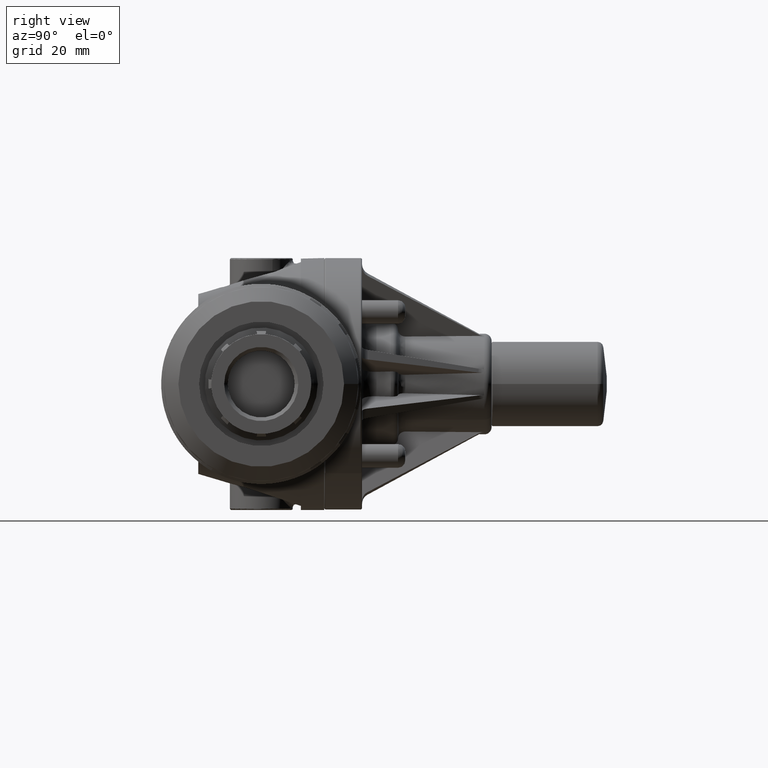
[diagram: clean part render]
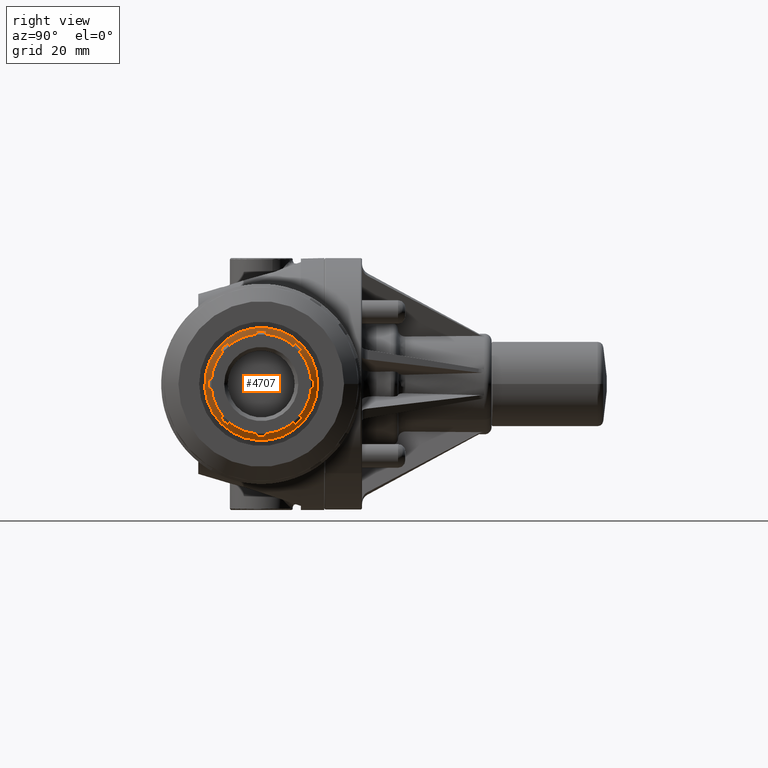
[diagram: same view with one face highlighted and labeled with its STEP entity id]
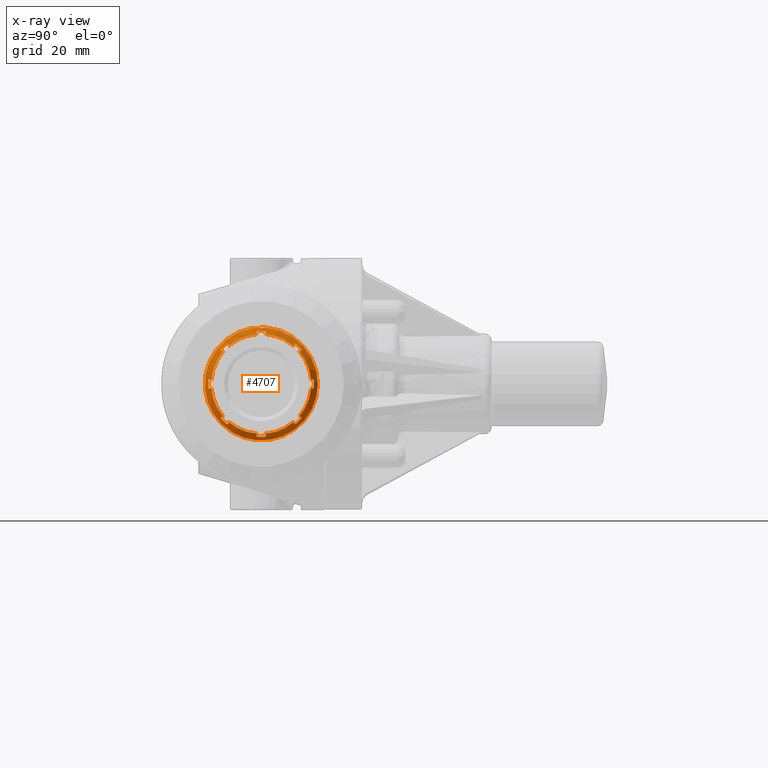
[diagram: x-ray of the same camera — body ghosted, the highlighted face saturated]
A machine part, right view. The second image highlights one B-rep face of the part: STEP entity #4707.
The next image is the same camera in x-ray: the body ghosted, the highlighted face saturated — about 0% of this face is hidden behind the body in this view.
In plain terms, the highlighted conical surface has half-angle 45 deg.
Its self-contained STEP definition (entity closure, byte-faithful):
#3659=CARTESIAN_POINT('',(2.840830213315428,1.659500000000000,-7.042256E-017));
#3660=VERTEX_POINT('',#3659);
#3661=CARTESIAN_POINT('',(2.840830213315428,0.874500000000000,-2.503190E-018));
#3662=DIRECTION('',(1.0,0.0,0.0));
#3663=DIRECTION('',(0.0,-1.0,0.0));
#3664=AXIS2_PLACEMENT_3D('',#3661,#3662,#3663);
#3665=CIRCLE('',#3664,0.785000000000000);
#3666=EDGE_CURVE('',#3660,#3660,#3665,.T.);
#3744=CARTESIAN_POINT('',(2.930830213315428,1.406900887967690,-0.446737388732145));
#3745=VERTEX_POINT('',#3744);
#3746=CARTESIAN_POINT('',(2.890830213315427,1.437542665692449,-0.472448893119607));
#3747=VERTEX_POINT('',#3746);
#3748=CARTESIAN_POINT('',(2.930830213315428,1.406900887967690,-0.446737388732145));
#3749=DIRECTION('',(-0.707106781186549,0.541675220419700,-0.454519477672044));
#3750=VECTOR('',#3749,0.056568542494925);
#3751=LINE('',#3748,#3750);
#3752=EDGE_CURVE('',#3745,#3747,#3751,.T.);
#3817=CARTESIAN_POINT('',(2.890830213315427,1.346948893119607,-0.563042665692450));
#3818=VERTEX_POINT('',#3817);
#3819=CARTESIAN_POINT('',(2.890830213315427,0.874500000000000,-3.020379E-018));
#3820=DIRECTION('',(-1.0,-8.851386E-017,1.054867E-016));
#3821=DIRECTION('',(-1.377031E-016,0.642787609686539,-0.766044443118978));
#3822=AXIS2_PLACEMENT_3D('',#3819,#3820,#3821);
#3823=CIRCLE('',#3822,0.735000000000000);
#3824=EDGE_CURVE('',#3747,#3818,#3823,.T.);
#3842=CARTESIAN_POINT('',(2.930830213315428,1.321237388732145,-0.532400887967690));
#3843=VERTEX_POINT('',#3842);
#3844=CARTESIAN_POINT('',(2.890830213315427,1.346948893119607,-0.563042665692450));
#3845=DIRECTION('',(0.707106781186549,-0.454519477672043,0.541675220419701));
#3846=VECTOR('',#3845,0.056568542494925);
#3847=LINE('',#3844,#3846);
#3848=EDGE_CURVE('',#3818,#3843,#3847,.T.);
#3866=CARTESIAN_POINT('',(2.930830213315428,0.935073241209622,-0.692355315173763));
#3867=VERTEX_POINT('',#3866);
#3868=CARTESIAN_POINT('',(2.890830213315427,0.938559470919529,-0.732203103097434));
#3869=VERTEX_POINT('',#3868);
#3870=CARTESIAN_POINT('',(2.930830213315428,0.935073241209622,-0.692355315173763));
#3871=DIRECTION('',(-0.707106781186550,0.061628416716220,-0.704416026402757));
#3872=VECTOR('',#3871,0.056568542494925);
#3873=LINE('',#3870,#3872);
#3874=EDGE_CURVE('',#3867,#3869,#3873,.T.);
#3939=CARTESIAN_POINT('',(2.890830213315427,0.810440529080471,-0.732203103097434));
#3940=VERTEX_POINT('',#3939);
#3941=CARTESIAN_POINT('',(2.890830213315428,0.874500000000000,-3.020379E-018));
#3942=DIRECTION('',(-1.000000000000000,-6.355758E-019,-7.264665E-018));
#3943=DIRECTION('',(7.292415E-018,-0.087155742747659,-0.996194698091745));
#3944=AXIS2_PLACEMENT_3D('',#3941,#3942,#3943);
#3945=CIRCLE('',#3944,0.735000000000000);
#3946=EDGE_CURVE('',#3869,#3940,#3945,.T.);
#3964=CARTESIAN_POINT('',(2.930830213315428,0.813926758790378,-0.692355315173763));
#3965=VERTEX_POINT('',#3964);
#3966=CARTESIAN_POINT('',(2.890830213315427,0.810440529080471,-0.732203103097434));
#3967=DIRECTION('',(0.707106781186550,0.061628416716220,0.704416026402757));
#3968=VECTOR('',#3967,0.056568542494925);
#3969=LINE('',#3966,#3968);
#3970=EDGE_CURVE('',#3940,#3965,#3969,.T.);
#3988=CARTESIAN_POINT('',(2.930830213315428,0.427762611267855,-0.532400887967690));
#3989=VERTEX_POINT('',#3988);
#3990=CARTESIAN_POINT('',(2.890830213315427,0.402051106880393,-0.563042665692449));
#3991=VERTEX_POINT('',#3990);
#3992=CARTESIAN_POINT('',(2.930830213315428,0.427762611267855,-0.532400887967689));
#3993=DIRECTION('',(-0.707106781186551,-0.454519477672042,-0.541675220419699));
#3994=VECTOR('',#3993,0.056568542494925);
#3995=LINE('',#3992,#3994);
#3996=EDGE_CURVE('',#3989,#3991,#3995,.T.);
#4061=CARTESIAN_POINT('',(2.890830213315427,0.311457334307551,-0.472448893119607));
#4062=VERTEX_POINT('',#4061);
#4063=CARTESIAN_POINT('',(2.890830213315427,0.874500000000000,-3.020379E-018));
#4064=DIRECTION('',(-1.0,-1.133870E-016,-9.514295E-017));
#4065=DIRECTION('',(1.480162E-016,-0.766044443118978,-0.642787609686539));
#4066=AXIS2_PLACEMENT_3D('',#4063,#4064,#4065);
#4067=CIRCLE('',#4066,0.735000000000000);
#4068=EDGE_CURVE('',#3991,#4062,#4067,.T.);
#4086=CARTESIAN_POINT('',(2.930830213315428,0.342099112032310,-0.446737388732145));
#4087=VERTEX_POINT('',#4086);
#4088=CARTESIAN_POINT('',(2.890830213315427,0.311457334307551,-0.472448893119607));
#4089=DIRECTION('',(0.707106781186549,0.541675220419701,0.454519477672043));
#4090=VECTOR('',#4089,0.056568542494925);
#4091=LINE('',#4088,#4090);
#4092=EDGE_CURVE('',#4062,#4087,#4091,.T.);
#4110=CARTESIAN_POINT('',(2.930830213315428,0.182144684826237,-0.060573241209622));
#4111=VERTEX_POINT('',#4110);
#4112=CARTESIAN_POINT('',(2.890830213315427,0.142296896902567,-0.064059470919529));
#4113=VERTEX_POINT('',#4112);
#4114=CARTESIAN_POINT('',(2.930830213315428,0.182144684826237,-0.060573241209622));
#4115=DIRECTION('',(-0.707106781186547,-0.704416026402759,-0.061628416716219));
#4116=VECTOR('',#4115,0.056568542494924);
#4117=LINE('',#4114,#4116);
#4118=EDGE_CURVE('',#4111,#4113,#4117,.T.);
#4183=CARTESIAN_POINT('',(2.890830213315427,0.142296896902567,0.064059470919529));
#4184=VERTEX_POINT('',#4183);
#4185=CARTESIAN_POINT('',(2.890830213315428,0.874500000000000,-3.020379E-018));
#4186=DIRECTION('',(-1.000000000000000,-2.012652E-016,1.760843E-017));
#4187=DIRECTION('',(2.020340E-016,-0.996194698091745,0.087155742747659));
#4188=AXIS2_PLACEMENT_3D('',#4185,#4186,#4187);
#4189=CIRCLE('',#4188,0.735000000000000);
#4190=EDGE_CURVE('',#4113,#4184,#4189,.T.);
#4208=CARTESIAN_POINT('',(2.930830213315428,0.182144684826237,0.060573241209623));
#4209=VERTEX_POINT('',#4208);
#4210=CARTESIAN_POINT('',(2.890830213315427,0.142296896902567,0.064059470919529));
#4211=DIRECTION('',(0.707106781186547,0.704416026402759,-0.061628416716220));
#4212=VECTOR('',#4211,0.056568542494924);
#4213=LINE('',#4210,#4212);
#4214=EDGE_CURVE('',#4184,#4209,#4213,.T.);
#4232=CARTESIAN_POINT('',(2.930830213315428,0.342099112032311,0.446737388732145));
#4233=VERTEX_POINT('',#4232);
#4234=CARTESIAN_POINT('',(2.890830213315427,0.311457334307551,0.472448893119607));
#4235=VERTEX_POINT('',#4234);
#4236=CARTESIAN_POINT('',(2.930830213315428,0.342099112032311,0.446737388732145));
#4237=DIRECTION('',(-0.707106781186547,-0.541675220419703,0.454519477672044));
#4238=VECTOR('',#4237,0.056568542494925);
#4239=LINE('',#4236,#4238);
#4240=EDGE_CURVE('',#4233,#4235,#4239,.T.);
#4305=CARTESIAN_POINT('',(2.890830213315427,0.402051106880393,0.563042665692449));
#4306=VERTEX_POINT('',#4305);
#4307=CARTESIAN_POINT('',(2.890830213315428,0.874500000000000,-3.020379E-018));
#4308=DIRECTION('',(-1.000000000000000,-8.851386E-017,1.054867E-016));
#4309=DIRECTION('',(1.377031E-016,-0.642787609686539,0.766044443118978));
#4310=AXIS2_PLACEMENT_3D('',#4307,#4308,#4309);
#4311=CIRCLE('',#4310,0.735000000000000);
#4312=EDGE_CURVE('',#4235,#4306,#4311,.T.);
#4330=CARTESIAN_POINT('',(2.930830213315428,0.427762611267855,0.532400887967690));
#4331=VERTEX_POINT('',#4330);
#4332=CARTESIAN_POINT('',(2.890830213315427,0.402051106880393,0.563042665692450));
#4333=DIRECTION('',(0.707106781186545,0.454519477672045,-0.541675220419704));
#4334=VECTOR('',#4333,0.056568542494925);
#4335=LINE('',#4332,#4334);
#4336=EDGE_CURVE('',#4306,#4331,#4335,.T.);
#4354=CARTESIAN_POINT('',(2.930830213315428,0.813926758790378,0.692355315173763));
#4355=VERTEX_POINT('',#4354);
#4356=CARTESIAN_POINT('',(2.890830213315427,0.810440529080472,0.732203103097434));
#4357=VERTEX_POINT('',#4356);
#4358=CARTESIAN_POINT('',(2.930830213315428,0.813926758790378,0.692355315173763));
#4359=DIRECTION('',(-0.707106781186550,-0.061628416716220,0.704416026402757));
#4360=VECTOR('',#4359,0.056568542494925);
#4361=LINE('',#4358,#4360);
#4362=EDGE_CURVE('',#4355,#4357,#4361,.T.);
#4427=CARTESIAN_POINT('',(2.890830213315427,0.938559470919529,0.732203103097434));
#4428=VERTEX_POINT('',#4427);
#4429=CARTESIAN_POINT('',(2.890830213315428,0.874500000000000,-3.020379E-018));
#4430=DIRECTION('',(-1.0,-6.355758E-019,-7.264665E-018));
#4431=DIRECTION('',(-7.292415E-018,0.087155742747658,0.996194698091746));
#4432=AXIS2_PLACEMENT_3D('',#4429,#4430,#4431);
#4433=CIRCLE('',#4432,0.735000000000000);
#4434=EDGE_CURVE('',#4357,#4428,#4433,.T.);
#4452=CARTESIAN_POINT('',(2.930830213315428,0.935073241209623,0.692355315173763));
#4453=VERTEX_POINT('',#4452);
#4454=CARTESIAN_POINT('',(2.890830213315427,0.938559470919529,0.732203103097434));
#4455=DIRECTION('',(0.707106781186550,-0.061628416716220,-0.704416026402757));
#4456=VECTOR('',#4455,0.056568542494925);
#4457=LINE('',#4454,#4456);
#4458=EDGE_CURVE('',#4428,#4453,#4457,.T.);
#4476=CARTESIAN_POINT('',(2.930830213315428,1.321237388732145,0.532400887967690));
#4477=VERTEX_POINT('',#4476);
#4478=CARTESIAN_POINT('',(2.890830213315427,1.346948893119607,0.563042665692449));
#4479=VERTEX_POINT('',#4478);
#4480=CARTESIAN_POINT('',(2.930830213315428,1.321237388732145,0.532400887967690));
#4481=DIRECTION('',(-0.707106781186549,0.454519477672043,0.541675220419701));
#4482=VECTOR('',#4481,0.056568542494925);
#4483=LINE('',#4480,#4482);
#4484=EDGE_CURVE('',#4477,#4479,#4483,.T.);
#4549=CARTESIAN_POINT('',(2.890830213315427,1.437542665692450,0.472448893119607));
#4550=VERTEX_POINT('',#4549);
#4551=CARTESIAN_POINT('',(2.890830213315428,0.874500000000000,-3.020379E-018));
#4552=DIRECTION('',(-1.000000000000000,-1.133870E-016,-9.514295E-017));
#4553=DIRECTION('',(-1.480162E-016,0.766044443118978,0.642787609686539));
#4554=AXIS2_PLACEMENT_3D('',#4551,#4552,#4553);
#4555=CIRCLE('',#4554,0.735000000000000);
#4556=EDGE_CURVE('',#4479,#4550,#4555,.T.);
#4574=CARTESIAN_POINT('',(2.930830213315428,1.406900887967690,0.446737388732145));
#4575=VERTEX_POINT('',#4574);
#4576=CARTESIAN_POINT('',(2.890830213315427,1.437542665692450,0.472448893119607));
#4577=DIRECTION('',(0.707106781186550,-0.541675220419700,-0.454519477672042));
#4578=VECTOR('',#4577,0.056568542494925);
#4579=LINE('',#4576,#4578);
#4580=EDGE_CURVE('',#4550,#4575,#4579,.T.);
#4593=CARTESIAN_POINT('',(2.885830213315427,0.874500000000000,-2.968660E-018));
#4594=DIRECTION('',(-1.0,-2.019008E-016,1.034376E-017));
#4595=DIRECTION('',(0.0,-1.0,0.0));
#4596=AXIS2_PLACEMENT_3D('',#4593,#4594,#4595);
#4597=CONICAL_SURFACE('',#4596,0.740000000000000,44.999999999999979);
#4598=ORIENTED_EDGE('',*,*,#3666,.T.);
#4599=EDGE_LOOP('',(#4598));
#4600=FACE_OUTER_BOUND('',#4599,.T.);
#4601=ORIENTED_EDGE('',*,*,#3752,.T.);
#4602=ORIENTED_EDGE('',*,*,#3824,.T.);
#4603=ORIENTED_EDGE('',*,*,#3848,.T.);
#4604=CARTESIAN_POINT('',(2.930830213315427,0.874500000000000,-3.434129E-018));
#4605=DIRECTION('',(-1.0,0.0,0.0));
#4606=DIRECTION('',(0.0,-1.0,0.0));
#4607=AXIS2_PLACEMENT_3D('',#4604,#4605,#4606);
#4608=CIRCLE('',#4607,0.695000000000000);
#4609=EDGE_CURVE('',#3843,#3867,#4608,.T.);
#4610=ORIENTED_EDGE('',*,*,#4609,.T.);
#4611=ORIENTED_EDGE('',*,*,#3874,.T.);
#4612=ORIENTED_EDGE('',*,*,#3946,.T.);
#4613=ORIENTED_EDGE('',*,*,#3970,.T.);
#4614=CARTESIAN_POINT('',(2.930830213315427,0.874500000000000,-3.434129E-018));
#4615=DIRECTION('',(-1.0,0.0,0.0));
#4616=DIRECTION('',(0.0,-1.0,0.0));
#4617=AXIS2_PLACEMENT_3D('',#4614,#4615,#4616);
#4618=CIRCLE('',#4617,0.695000000000000);
#4619=EDGE_CURVE('',#3965,#3989,#4618,.T.);
#4620=ORIENTED_EDGE('',*,*,#4619,.T.);
#4621=ORIENTED_EDGE('',*,*,#3996,.T.);
#4622=ORIENTED_EDGE('',*,*,#4068,.T.);
#4623=ORIENTED_EDGE('',*,*,#4092,.T.);
#4624=CARTESIAN_POINT('',(2.930830213315427,0.874500000000000,-3.434129E-018));
#4625=DIRECTION('',(-1.0,0.0,0.0));
#4626=DIRECTION('',(0.0,-1.0,0.0));
#4627=AXIS2_PLACEMENT_3D('',#4624,#4625,#4626);
#4628=CIRCLE('',#4627,0.695000000000000);
#4629=EDGE_CURVE('',#4087,#4111,#4628,.T.);
#4630=ORIENTED_EDGE('',*,*,#4629,.T.);
#4631=ORIENTED_EDGE('',*,*,#4118,.T.);
#4632=ORIENTED_EDGE('',*,*,#4190,.T.);
#4633=ORIENTED_EDGE('',*,*,#4214,.T.);
#4634=CARTESIAN_POINT('',(2.930830213315427,0.874500000000000,-3.434129E-018));
#4635=DIRECTION('',(-1.0,0.0,0.0));
#4636=DIRECTION('',(0.0,-1.0,0.0));
#4637=AXIS2_PLACEMENT_3D('',#4634,#4635,#4636);
#4638=CIRCLE('',#4637,0.695000000000000);
#4639=EDGE_CURVE('',#4209,#4233,#4638,.T.);
#4640=ORIENTED_EDGE('',*,*,#4639,.T.);
#4641=ORIENTED_EDGE('',*,*,#4240,.T.);
#4642=ORIENTED_EDGE('',*,*,#4312,.T.);
#4643=ORIENTED_EDGE('',*,*,#4336,.T.);
#4644=CARTESIAN_POINT('',(2.930830213315427,0.874500000000000,-3.434129E-018));
#4645=DIRECTION('',(-1.0,0.0,0.0));
#4646=DIRECTION('',(0.0,-1.0,0.0));
#4647=AXIS2_PLACEMENT_3D('',#4644,#4645,#4646);
#4648=CIRCLE('',#4647,0.695000000000000);
#4649=EDGE_CURVE('',#4331,#4355,#4648,.T.);
#4650=ORIENTED_EDGE('',*,*,#4649,.T.);
#4651=ORIENTED_EDGE('',*,*,#4362,.T.);
#4652=ORIENTED_EDGE('',*,*,#4434,.T.);
#4653=ORIENTED_EDGE('',*,*,#4458,.T.);
#4654=CARTESIAN_POINT('',(2.930830213315427,0.874500000000000,-3.434129E-018));
#4655=DIRECTION('',(-1.0,0.0,0.0));
#4656=DIRECTION('',(0.0,-1.0,0.0));
#4657=AXIS2_PLACEMENT_3D('',#4654,#4655,#4656);
#4658=CIRCLE('',#4657,0.695000000000000);
#4659=EDGE_CURVE('',#4453,#4477,#4658,.T.);
#4660=ORIENTED_EDGE('',*,*,#4659,.T.);
#4661=ORIENTED_EDGE('',*,*,#4484,.T.);
#4662=ORIENTED_EDGE('',*,*,#4556,.T.);
#4663=ORIENTED_EDGE('',*,*,#4580,.T.);
#4664=CARTESIAN_POINT('',(2.930830213315428,1.566855315173763,0.060573241209622));
#4665=VERTEX_POINT('',#4664);
#4666=CARTESIAN_POINT('',(2.930830213315427,0.874500000000000,-3.434129E-018));
#4667=DIRECTION('',(-1.0,0.0,0.0));
#4668=DIRECTION('',(0.0,-1.0,0.0));
#4669=AXIS2_PLACEMENT_3D('',#4666,#4667,#4668);
#4670=CIRCLE('',#4669,0.695000000000000);
#4671=EDGE_CURVE('',#4575,#4665,#4670,.T.);
#4672=ORIENTED_EDGE('',*,*,#4671,.T.);
#4673=CARTESIAN_POINT('',(2.890830213315427,1.606703103097434,0.064059470919529));
#4674=VERTEX_POINT('',#4673);
#4675=CARTESIAN_POINT('',(2.930830213315428,1.566855315173763,0.060573241209622));
#4676=DIRECTION('',(-0.707106781186550,0.704416026402757,0.061628416716219));
#4677=VECTOR('',#4676,0.056568542494925);
#4678=LINE('',#4675,#4677);
#4679=EDGE_CURVE('',#4665,#4674,#4678,.T.);
#4680=ORIENTED_EDGE('',*,*,#4679,.T.);
#4681=CARTESIAN_POINT('',(2.890830213315427,1.606703103097434,-0.064059470919529));
#4682=VERTEX_POINT('',#4681);
#4683=CARTESIAN_POINT('',(2.890830213315428,0.874500000000000,-3.020379E-018));
#4684=DIRECTION('',(-1.0,-2.012652E-016,1.760843E-017));
#4685=DIRECTION('',(-2.020340E-016,0.996194698091746,-0.087155742747658));
#4686=AXIS2_PLACEMENT_3D('',#4683,#4684,#4685);
#4687=CIRCLE('',#4686,0.735000000000000);
#4688=EDGE_CURVE('',#4674,#4682,#4687,.T.);
#4689=ORIENTED_EDGE('',*,*,#4688,.T.);
#4690=CARTESIAN_POINT('',(2.930830213315428,1.566855315173763,-0.060573241209623));
#4691=VERTEX_POINT('',#4690);
#4692=CARTESIAN_POINT('',(2.890830213315427,1.606703103097434,-0.064059470919529));
#4693=DIRECTION('',(0.707106781186550,-0.704416026402757,0.061628416716219));
#4694=VECTOR('',#4693,0.056568542494925);
#4695=LINE('',#4692,#4694);
#4696=EDGE_CURVE('',#4682,#4691,#4695,.T.);
#4697=ORIENTED_EDGE('',*,*,#4696,.T.);
#4698=CARTESIAN_POINT('',(2.930830213315427,0.874500000000000,-3.434129E-018));
#4699=DIRECTION('',(-1.0,0.0,0.0));
#4700=DIRECTION('',(0.0,-1.0,0.0));
#4701=AXIS2_PLACEMENT_3D('',#4698,#4699,#4700);
#4702=CIRCLE('',#4701,0.695000000000000);
#4703=EDGE_CURVE('',#4691,#3745,#4702,.T.);
#4704=ORIENTED_EDGE('',*,*,#4703,.T.);
#4705=EDGE_LOOP('',(#4601,#4602,#4603,#4610,#4611,#4612,#4613,#4620,#4621,#4622,#4623,#4630,#4631,#4632,#4633,#4640,#4641,#4642,#4643,#4650,#4651,#4652,#4653,#4660,#4661,#4662,#4663,#4672,#4680,#4689,#4697,#4704));
#4706=FACE_BOUND('',#4705,.T.);
#4707=ADVANCED_FACE('',(#4600,#4706),#4597,.T.);